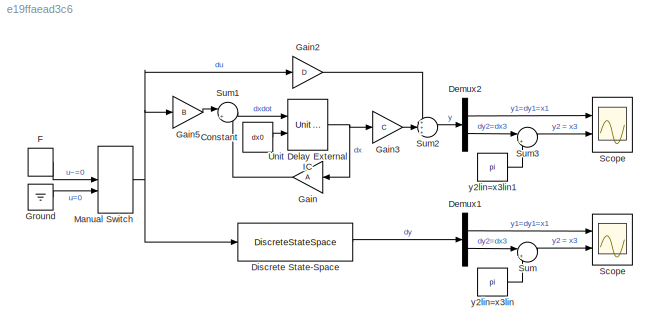
MODEL slx_e19ffaead3c6
KIND model
CONFIG AbsTol = auto
CONFIG EnableMultiTasking = on
CONFIG FixedStep = Ts
CONFIG MaxStep = auto
CONFIG MinStep = auto
CONFIG RelTol = 1e-3
CONFIG SampleTimeConstraint = Unconstrained
CONFIG Solver = FixedStepDiscrete
CONFIG SolverName = FixedStepDiscrete
CONFIG StartTime = 0.0
CONFIG StopTime = 10.0
BLOCK [Scope]  Scope
  NumInputPorts = 2
  Ports = [2]
  ScopeSpecificationString = Simulink.scopes.TimeScopeBlockCfg('CurrentConfiguration', extmgr.ConfigurationSet(extmgr.Configuration('Core','General UI',true,'FigureColor',[1 1 1]),extmgr.Configuration('Core','Source UI',true),extmgr.Configuration('Sources','WiredSimulink',true,'DataLoggingSaveFormat','Structure','DataLoggingDecimation','1','DataLoggingDecimateData',true,'DataLogging',true),extmgr.Configuration('Visuals','Time...<+7694ch>
BLOCK [Scope]  Scope 
  NumInputPorts = 2
  Ports = [2]
  ScopeSpecificationString = Simulink.scopes.TimeScopeBlockCfg('CurrentConfiguration', extmgr.ConfigurationSet(extmgr.Configuration('Core','General UI',true,'FigureColor',[1 1 1]),extmgr.Configuration('Core','Source UI',true),extmgr.Configuration('Sources','WiredSimulink',true,'DataLoggingSaveFormat','Structure','DataLoggingDecimation','1','DataLoggingDecimateData',true,'DataLogging',true,'DataLoggingVariableName','ScopeData1...<+7682ch>
BLOCK [Constant] Constant
  SampleTime = 0.01
  Value = dx0
BLOCK [Demux] Demux1
  DisplayOption = bar
  Outputs = 2
  Ports = [1, 2]
BLOCK [Demux] Demux2
  DisplayOption = bar
  Outputs = 2
  Ports = [1, 2]
BLOCK [DiscreteStateSpace] Discrete State-Space
  A = A
  B = B
  C = C
  D = D
  InitialCondition = dx0
  SampleTime = -1
BLOCK [DiscretePulseGenerator] F
  Amplitude = 50
  Period = 10
  Ports = [0, 1]
  PulseType = Time based
  PulseWidth = 0.1
BLOCK [Gain] Gain
  Gain = A
  Multiplication = Matrix(K*u) (u vector)
  OutDataTypeStr = Inherit: Inherit via internal rule
  ParamDataTypeStr = Inherit: Inherit via internal rule
  SaturateOnIntegerOverflow = off
BLOCK [Gain] Gain2
  Gain = D
  Multiplication = Matrix(K*u) (u vector)
  OutDataTypeStr = Inherit: Inherit via internal rule
  ParamDataTypeStr = Inherit: Inherit via internal rule
  SaturateOnIntegerOverflow = off
BLOCK [Gain] Gain3
  Gain = C
  Multiplication = Matrix(K*u) (u vector)
  OutDataTypeStr = Inherit: Inherit via internal rule
  ParamDataTypeStr = Inherit: Inherit via internal rule
  SaturateOnIntegerOverflow = off
BLOCK [Gain] Gain5 
  Gain = B
  Multiplication = Matrix(K*u) (u vector)
  OutDataTypeStr = Inherit: Inherit via internal rule
  ParamDataTypeStr = Inherit: Inherit via internal rule
  SaturateOnIntegerOverflow = off
BLOCK [Ground] Ground
BLOCK [ManualSwitch] Manual Switch
BLOCK [Sum] Sum
  IconShape = round
  InputSameDT = off
  Inputs = |++
  OutDataTypeStr = Inherit: Inherit via internal rule
  Ports = [2, 1]
  SaturateOnIntegerOverflow = off
BLOCK [Sum] Sum1
  IconShape = round
  InputSameDT = off
  Inputs = |++
  OutDataTypeStr = Inherit: Inherit via internal rule
  Ports = [2, 1]
  SaturateOnIntegerOverflow = off
BLOCK [Sum] Sum2
  IconShape = round
  InputSameDT = off
  Inputs = +++
  OutDataTypeStr = Inherit: Inherit via internal rule
  Ports = [3, 1]
  SaturateOnIntegerOverflow = off
BLOCK [Sum] Sum3
  IconShape = round
  InputSameDT = off
  Inputs = |++
  OutDataTypeStr = Inherit: Inherit via internal rule
  Ports = [2, 1]
  SaturateOnIntegerOverflow = off
BLOCK [Reference] Unit Delay External IC  REF=simulink_need_slupdate/Unit Delay
External IC
  Ports = [2, 1]
  SourceBlock = simulink_need_slupdate/Unit Delay\nExternal IC
  SourceProductBaseCode = SL
  SourceProductName = Simulink
  SourceType = Unit Delay External Initial Condition
BLOCK [Constant] y2lin=x3lin
  Value = pi
BLOCK [Constant] y2lin=x3lin1
  Value = pi
LINE Constant:1 -> Unit Delay External IC:2
LINE Demux1:1 ->  Scope:1
LINE Demux1:2 -> Sum:1
LINE Demux2:1 ->  Scope :1
LINE Demux2:2 -> Sum3:1
LINE Discrete State-Space:1 -> Demux1:1
LINE F:1 -> Manual Switch:1
LINE Gain2:1 -> Sum2:1
LINE Gain3:1 -> Sum2:2
LINE Gain5 :1 -> Sum1:1
LINE Gain:1 -> Sum1:2
LINE Ground:1 -> Manual Switch:2
NET Manual Switch:1 -> Discrete State-Space:1, Gain2:1, Gain5 :1
LINE Sum1:1 -> Unit Delay External IC:1
LINE Sum2:1 -> Demux2:1
LINE Sum3:1 ->  Scope :2
LINE Sum:1 ->  Scope:2
NET Unit Delay External IC:1 -> Gain3:1, Gain:1
LINE y2lin=x3lin1:1 -> Sum3:2
LINE y2lin=x3lin:1 -> Sum:2
note: NET lines group one-source signal fan-out (src -> all destinations, sorted); 1:1 wires keep LINE
